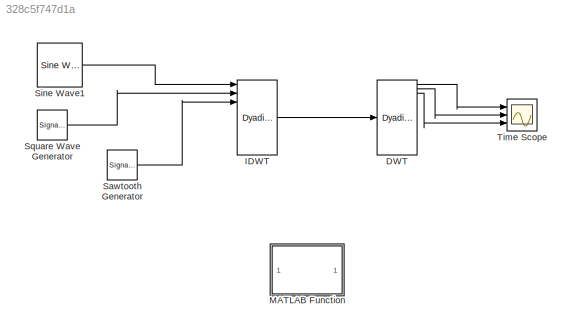
MODEL slx_328c5f747d1a
KIND model
CONFIG AbsTol = auto
CONFIG EnableMultiTasking = off
CONFIG FixedStep = auto
CONFIG MaxStep = auto
CONFIG MinStep = auto
CONFIG RelTol = 1e-3
CONFIG SampleTimeConstraint = Unconstrained
CONFIG Solver = FixedStepDiscrete
CONFIG SolverName = FixedStepDiscrete
CONFIG StartTime = 0.0
CONFIG StopTime = inf
BLOCK [Reference] DWT  REF=dspmlti4/Dyadic Analysis
Filter Bank
  Ports = [1, 16]
  SourceBlock = dspmlti4/Dyadic Analysis\nFilter Bank
  SourceProductBaseCode = DS
  SourceProductName = DSP System Toolbox
  SourceType = Dyadic Analysis Filter Bank
BLOCK [Reference] IDWT  REF=dspmlti4/Dyadic Synthesis
Filter Bank
  Ports = [16, 1]
  SourceBlock = dspmlti4/Dyadic Synthesis\nFilter Bank
  SourceProductBaseCode = DS
  SourceProductName = DSP System Toolbox
  SourceType = Dyadic Synthesis Filter Bank
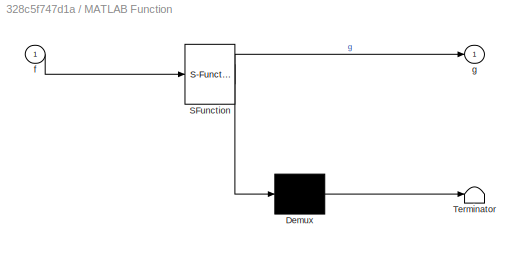
BLOCK [SubSystem] MATLAB Function
  Commented = on
  ErrorFcn = Stateflow.Translate.translate
  PermitHierarchicalResolution = ExplicitOnly
  Ports = [1, 1]
  RequestExecContextInheritance = off
  SFBlockType = MATLAB Function
  TreatAsAtomicUnit = on
BLOCK [Demux] MATLAB Function/ Demux 
  Outputs = 1
  Ports = [1, 1]
BLOCK [S-Function] MATLAB Function/ SFunction 
  EnableBusSupport = on
  FunctionName = sf_sfun
  PortCounts = [1 2]
  Ports = [1, 2]
  SFcnIsStateOwnerBlock = off
  SFunctionDeploymentMode = off
  Tag = Stateflow S-Function wavelet_transmux 2
BLOCK [Terminator] MATLAB Function/ Terminator 
BLOCK [Inport] MATLAB Function/f
  IconDisplay = Port number
BLOCK [Outport] MATLAB Function/g
  IconDisplay = Port number
BLOCK [SignalGenerator] Sawtooth Generator
  Ports = [0, 1]
  Units = rad/sec
  WaveForm = sawtooth
BLOCK [Reference] Sine Wave1  REF=dspsrcs4/Sine Wave
  Ports = [0, 1]
  SourceBlock = dspsrcs4/Sine Wave
  SourceProductBaseCode = DS
  SourceProductName = DSP System Toolbox
  SourceType = Sine Wave
BLOCK [SignalGenerator] Square Wave Generator
  Ports = [0, 1]
  Units = rad/sec
  WaveForm = square
BLOCK [Scope] Time Scope
  DefaultConfigurationName = spbscopes.TimeScopeBlockCfg
  Floating = off
  NumInputPorts = 3
  Ports = [3]
  ScopeSpecificationString = spbscopes.TimeScopeBlockCfg('CurrentConfiguration', extmgr.ConfigurationSet(extmgr.Configuration('Core','General UI',true),extmgr.Configuration('Core','Source UI',true),extmgr.Configuration('Sources','WiredSimulink',true),extmgr.Configuration('Visuals','Time Domain',true,'DisplayPropertyDefaults',struct('MinYLimReal','-1.59388','MaxYLimReal','1.081','YLabelReal','Amplitude','MinYLimMag','0.00000',...<+1383ch>
  UserDataPersistent = on
LINE DWT:1 -> Time Scope:1
LINE DWT:2 -> Time Scope:2
LINE DWT:3 -> Time Scope:3
LINE IDWT:1 -> DWT:1
LINE Sawtooth Generator:1 -> IDWT:5
LINE Sine Wave1:1 -> IDWT:1
LINE Square Wave Generator:1 -> IDWT:3
CHART MATLAB Function states=1 transitions=1
  STATE_LABEL 'eML_blk_kernel()'
  STATE_LABEL 'SCRIPT:\nfunction g = dwt(f)\n\nh = [-0.230377813308855 0.714846570552542 -0.630880767929591 -0.0279837694169839 0.187034811718881 0.0308413818359870 -0.0328830116669830 -0.0105974017849973];\nN = length(h);  \nL = length(f);\n\nc = zeros(1,L);\nh0 = zeros(1,N);\nh1 = zeros(1,N);\nd = zeros(1,L);\ne = zeros(1,N + 7);\n\nc = f;\nh0  = fliplr(h);                          % Scaling filter\nh1 = h;  \nh1(1:2:N) = -h1...<+276ch>'
